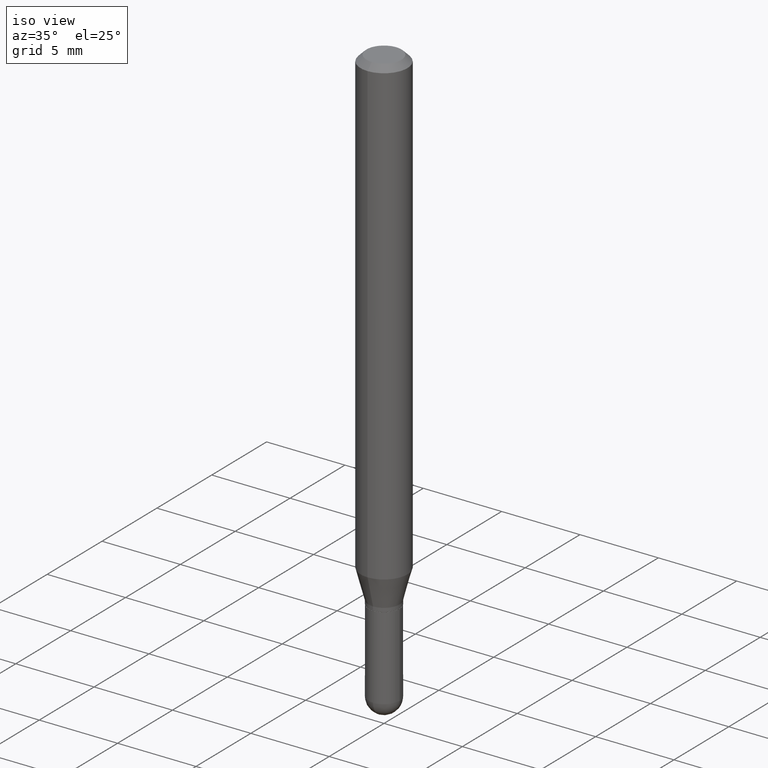
[diagram: clean part render]
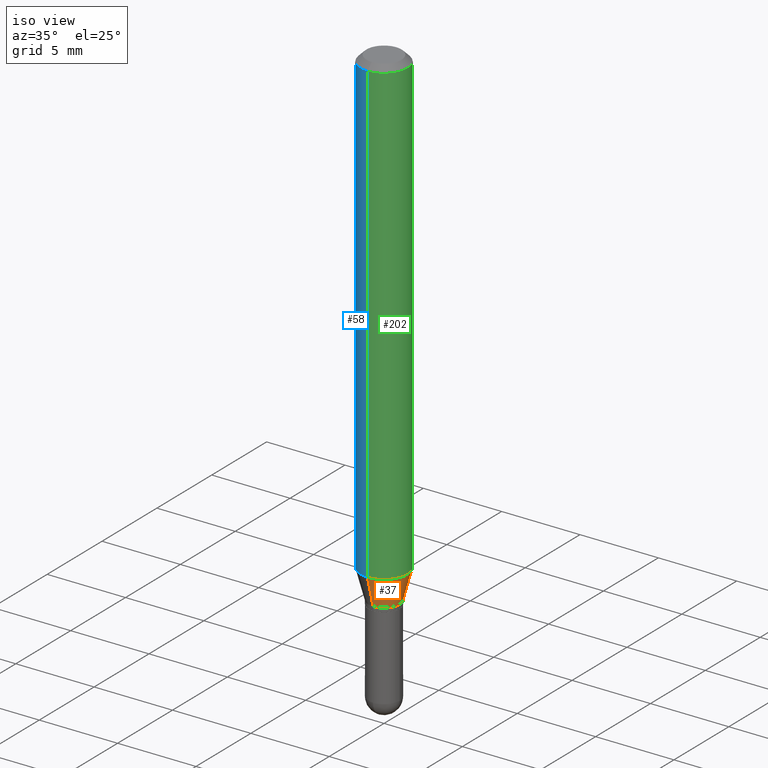
[diagram: same view with three faces highlighted in distinct colors, each labeled with its STEP entity id]
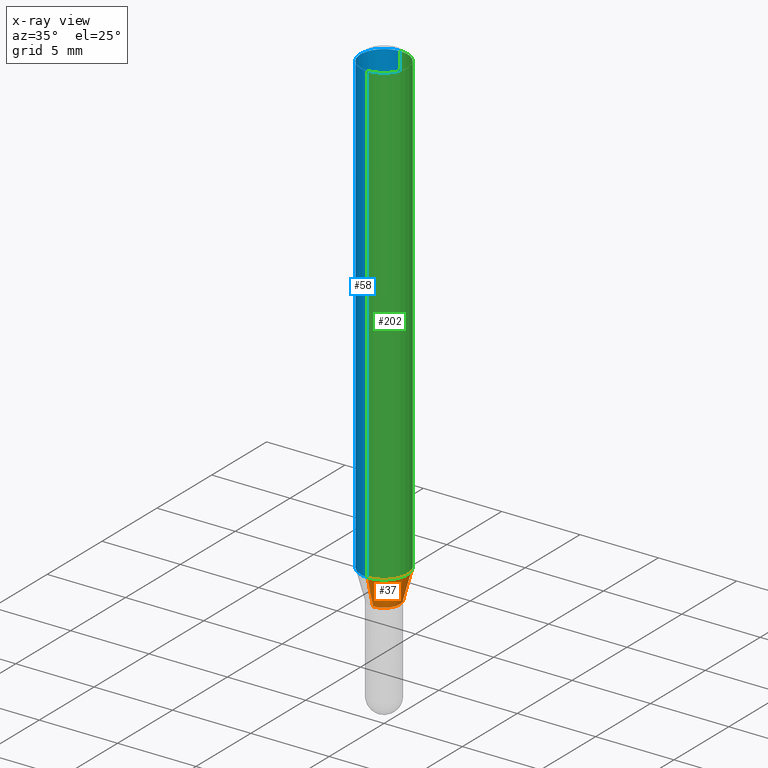
[diagram: x-ray of the same camera — body ghosted, the three highlighted faces saturated]
A machine part, iso view with three faces highlighted in distinct colors.
The next image is the same camera in x-ray (body ghosted, the three faces saturated) — at least one of them is partly hidden behind the body in this view.
Their STEP definitions:

[orange] entity #37 — the highlighted conical surface has half-angle 15 deg.
#20 = ORIENTED_EDGE ( 'NONE', *, *, #29, .F. ) ;
#29 = EDGE_CURVE ( 'NONE', #430, #311, #178, .T. ) ;
#37 = ADVANCED_FACE ( 'NONE', ( #319 ), #457, .T. ) ;
#43 = DIRECTION ( 'NONE',  ( -6.982962677686265133E-15, -1.000000000000000000, 6.942434545525459712E-15 ) ) ;
#44 = CARTESIAN_POINT ( 'NONE',  ( -2.747795813669238062E-16, -0.03935000000000424270, -1.238099999999999534 ) ) ;
#57 = CARTESIAN_POINT ( 'NONE',  ( -4.123439461173452886E-16, -0.05905000000000402982, -1.164578599090892785 ) ) ;
#59 = CARTESIAN_POINT ( 'NONE',  ( 4.195754854663677934E-16, 0.05904999999999596683, -1.164578599090893229 ) ) ;
#68 = LINE ( 'NONE', #232, #431 ) ;
#72 = DIRECTION ( 'NONE',  ( -2.445991447333329279E-29, 3.490732886972046653E-15, 1.000000000000000000 ) ) ;
#98 = LINE ( 'NONE', #263, #114 ) ;
#101 = EDGE_CURVE ( 'NONE', #102, #470, #421, .T. ) ;
#102 = VERTEX_POINT ( 'NONE', #44 ) ;
#109 = CARTESIAN_POINT ( 'NONE',  ( 2.848549293123754219E-29, -4.065232815310413885E-15, -1.164578599090893007 ) ) ;
#114 = VECTOR ( 'NONE', #224, 39.37007874015748143 ) ;
#144 = DIRECTION ( 'NONE',  ( -2.445991447333329279E-29, 3.490732886972046653E-15, 1.000000000000000000 ) ) ;
#164 = DIRECTION ( 'NONE',  ( -1.807323732225330928E-15, -0.2588190451025182970, 0.9659258262890689783 ) ) ;
#178 = CIRCLE ( 'NONE', #380, 0.05904999999999999832 ) ;
#224 = DIRECTION ( 'NONE',  ( 1.839019923739601104E-15, 0.2588190451025250693, 0.9659258262890670910 ) ) ;
#232 = CARTESIAN_POINT ( 'NONE',  ( -2.747795813669238062E-16, -0.03935000000000424270, -1.238099999999999534 ) ) ;
#236 = DIRECTION ( 'NONE',  ( -6.982962677686265133E-15, -1.000000000000000000, 6.942434545525459712E-15 ) ) ;
#263 = CARTESIAN_POINT ( 'NONE',  ( 2.795985665216290763E-16, 0.03934999999999560377, -1.238100000000000200 ) ) ;
#276 = CARTESIAN_POINT ( 'NONE',  ( 3.028382010943394817E-29, -4.321876387360090974E-15, -1.238099999999999756 ) ) ;
#284 = ORIENTED_EDGE ( 'NONE', *, *, #101, .T. ) ;
#306 = CARTESIAN_POINT ( 'NONE',  ( 3.495870259939983362E-16, 0.03934999999999560377, -1.238100000000000200 ) ) ;
#311 = VERTEX_POINT ( 'NONE', #59 ) ;
#312 = AXIS2_PLACEMENT_3D ( 'NONE', #276, #72, #236 ) ;
#319 = FACE_OUTER_BOUND ( 'NONE', #498, .T. ) ;
#352 = ORIENTED_EDGE ( 'NONE', *, *, #489, .T. ) ;
#363 = ORIENTED_EDGE ( 'NONE', *, *, #415, .F. ) ;
#369 = CARTESIAN_POINT ( 'NONE',  ( 3.028382010943394817E-29, -4.321876387360090974E-15, -1.238099999999999756 ) ) ;
#380 = AXIS2_PLACEMENT_3D ( 'NONE', #109, #144, #388 ) ;
#388 = DIRECTION ( 'NONE',  ( -6.982962677686265922E-15, -1.000000000000000000, 4.626330217890369336E-15 ) ) ;
#415 = EDGE_CURVE ( 'NONE', #102, #430, #68, .T. ) ;
#421 = CIRCLE ( 'NONE', #493, 0.03934999999999992670 ) ;
#430 = VERTEX_POINT ( 'NONE', #57 ) ;
#431 = VECTOR ( 'NONE', #164, 39.37007874015748143 ) ;
#446 = DIRECTION ( 'NONE',  ( -2.445991447333329279E-29, 3.490732886972046653E-15, 1.000000000000000000 ) ) ;
#457 = CONICAL_SURFACE ( 'NONE', #312, 0.03934999999999992670, 0.2617993877991502960 ) ;
#470 = VERTEX_POINT ( 'NONE', #306 ) ;
#489 = EDGE_CURVE ( 'NONE', #470, #311, #98, .T. ) ;
#493 = AXIS2_PLACEMENT_3D ( 'NONE', #369, #446, #43 ) ;
#498 = EDGE_LOOP ( 'NONE', ( #284, #352, #20, #363 ) ) ;

[blue] entity #58 — the highlighted cylindrical surface (edge-blend (fillet) strip) has radius 1.4999 mm, axis along (-0, 0, 1).
#13 = CARTESIAN_POINT ( 'NONE',  ( 0.000000000000000000, 0.000000000000000000, 0.000000000000000000 ) ) ;
#19 = CARTESIAN_POINT ( 'NONE',  ( -4.123439461173737369E-16, -0.05905000000000006771, -0.01500000000000025618 ) ) ;
#30 = CARTESIAN_POINT ( 'NONE',  ( 4.195754854663679906E-16, 0.05904999999999997057, -0.01500000000000067078 ) ) ;
#33 = VERTEX_POINT ( 'NONE', #30 ) ;
#42 = ORIENTED_EDGE ( 'NONE', *, *, #365, .T. ) ;
#50 = CYLINDRICAL_SURFACE ( 'NONE', #73, 0.05905000000000000526 ) ;
#57 = CARTESIAN_POINT ( 'NONE',  ( -4.123439461173452886E-16, -0.05905000000000402982, -1.164578599090892785 ) ) ;
#58 = ADVANCED_FACE ( 'NONE', ( #123 ), #50, .T. ) ;
#59 = CARTESIAN_POINT ( 'NONE',  ( 4.195754854663677934E-16, 0.05904999999999596683, -1.164578599090893229 ) ) ;
#73 = AXIS2_PLACEMENT_3D ( 'NONE', #13, #89, #300 ) ;
#76 = ORIENTED_EDGE ( 'NONE', *, *, #332, .F. ) ;
#80 = CIRCLE ( 'NONE', #289, 0.05904999999999999832 ) ;
#83 = CARTESIAN_POINT ( 'NONE',  ( -4.123439461173740327E-16, -0.05905000000000000526, 2.061277769756993909E-16 ) ) ;
#89 = DIRECTION ( 'NONE',  ( -2.445991447333329279E-29, 3.490732886972046653E-15, 1.000000000000000000 ) ) ;
#123 = FACE_OUTER_BOUND ( 'NONE', #464, .T. ) ;
#142 = VECTOR ( 'NONE', #375, 39.37007874015748143 ) ;
#151 = DIRECTION ( 'NONE',  ( -2.445991447333329279E-29, 3.490732886972046653E-15, 1.000000000000000000 ) ) ;
#188 = AXIS2_PLACEMENT_3D ( 'NONE', #201, #361, #463 ) ;
#198 = CIRCLE ( 'NONE', #188, 0.05905000000000001914 ) ;
#201 = CARTESIAN_POINT ( 'NONE',  ( 3.668987171000107582E-31, -5.236099330458231942E-17, -0.01500000000000046262 ) ) ;
#219 = EDGE_CURVE ( 'NONE', #430, #231, #441, .T. ) ;
#231 = VERTEX_POINT ( 'NONE', #19 ) ;
#248 = DIRECTION ( 'NONE',  ( -2.445991447333329279E-29, 3.490732886972046653E-15, 1.000000000000000000 ) ) ;
#274 = ORIENTED_EDGE ( 'NONE', *, *, #440, .F. ) ;
#289 = AXIS2_PLACEMENT_3D ( 'NONE', #389, #151, #508 ) ;
#300 = DIRECTION ( 'NONE',  ( -6.982962677686265922E-15, -1.000000000000000000, 3.490732886972047047E-15 ) ) ;
#308 = LINE ( 'NONE', #499, #142 ) ;
#311 = VERTEX_POINT ( 'NONE', #59 ) ;
#332 = EDGE_CURVE ( 'NONE', #33, #231, #198, .T. ) ;
#361 = DIRECTION ( 'NONE',  ( -2.445991447333329279E-29, 3.490732886972046653E-15, 1.000000000000000000 ) ) ;
#365 = EDGE_CURVE ( 'NONE', #311, #430, #80, .T. ) ;
#375 = DIRECTION ( 'NONE',  ( -2.445991447333329279E-29, 3.490732886972046653E-15, 1.000000000000000000 ) ) ;
#389 = CARTESIAN_POINT ( 'NONE',  ( 2.848549293123754219E-29, -4.065232815310413885E-15, -1.164578599090893007 ) ) ;
#430 = VERTEX_POINT ( 'NONE', #57 ) ;
#440 = EDGE_CURVE ( 'NONE', #311, #33, #308, .T. ) ;
#441 = LINE ( 'NONE', #83, #458 ) ;
#451 = ORIENTED_EDGE ( 'NONE', *, *, #219, .T. ) ;
#458 = VECTOR ( 'NONE', #248, 39.37007874015748143 ) ;
#463 = DIRECTION ( 'NONE',  ( -6.982962677686265922E-15, -1.000000000000000000, 3.505890868245044514E-15 ) ) ;
#464 = EDGE_LOOP ( 'NONE', ( #274, #42, #451, #76 ) ) ;
#499 = CARTESIAN_POINT ( 'NONE',  ( 4.195754854663391478E-16, 0.05905000000000000526, -2.061277769756993909E-16 ) ) ;
#508 = DIRECTION ( 'NONE',  ( -6.982962677686265922E-15, -1.000000000000000000, 4.626330217890369336E-15 ) ) ;

[green] entity #202 — the highlighted cylindrical surface (edge-blend (fillet) strip) has radius 1.4999 mm, axis along (-0, 0, 1).
#7 = AXIS2_PLACEMENT_3D ( 'NONE', #338, #336, #341 ) ;
#19 = CARTESIAN_POINT ( 'NONE',  ( -4.123439461173737369E-16, -0.05905000000000006771, -0.01500000000000025618 ) ) ;
#29 = EDGE_CURVE ( 'NONE', #430, #311, #178, .T. ) ;
#30 = CARTESIAN_POINT ( 'NONE',  ( 4.195754854663679906E-16, 0.05904999999999997057, -0.01500000000000067078 ) ) ;
#33 = VERTEX_POINT ( 'NONE', #30 ) ;
#57 = CARTESIAN_POINT ( 'NONE',  ( -4.123439461173452886E-16, -0.05905000000000402982, -1.164578599090892785 ) ) ;
#59 = CARTESIAN_POINT ( 'NONE',  ( 4.195754854663677934E-16, 0.05904999999999596683, -1.164578599090893229 ) ) ;
#83 = CARTESIAN_POINT ( 'NONE',  ( -4.123439461173740327E-16, -0.05905000000000000526, 2.061277769756993909E-16 ) ) ;
#109 = CARTESIAN_POINT ( 'NONE',  ( 2.848549293123754219E-29, -4.065232815310413885E-15, -1.164578599090893007 ) ) ;
#117 = ORIENTED_EDGE ( 'NONE', *, *, #156, .F. ) ;
#126 = CYLINDRICAL_SURFACE ( 'NONE', #140, 0.05905000000000000526 ) ;
#139 = ORIENTED_EDGE ( 'NONE', *, *, #29, .T. ) ;
#140 = AXIS2_PLACEMENT_3D ( 'NONE', #296, #483, #291 ) ;
#142 = VECTOR ( 'NONE', #375, 39.37007874015748143 ) ;
#144 = DIRECTION ( 'NONE',  ( -2.445991447333329279E-29, 3.490732886972046653E-15, 1.000000000000000000 ) ) ;
#156 = EDGE_CURVE ( 'NONE', #231, #33, #168, .T. ) ;
#168 = CIRCLE ( 'NONE', #7, 0.05905000000000001914 ) ;
#178 = CIRCLE ( 'NONE', #380, 0.05904999999999999832 ) ;
#184 = ORIENTED_EDGE ( 'NONE', *, *, #219, .F. ) ;
#202 = ADVANCED_FACE ( 'NONE', ( #333 ), #126, .T. ) ;
#219 = EDGE_CURVE ( 'NONE', #430, #231, #441, .T. ) ;
#231 = VERTEX_POINT ( 'NONE', #19 ) ;
#248 = DIRECTION ( 'NONE',  ( -2.445991447333329279E-29, 3.490732886972046653E-15, 1.000000000000000000 ) ) ;
#291 = DIRECTION ( 'NONE',  ( -6.982962677686265922E-15, -1.000000000000000000, 3.490732886972047047E-15 ) ) ;
#296 = CARTESIAN_POINT ( 'NONE',  ( 0.000000000000000000, 0.000000000000000000, 0.000000000000000000 ) ) ;
#308 = LINE ( 'NONE', #499, #142 ) ;
#311 = VERTEX_POINT ( 'NONE', #59 ) ;
#322 = ORIENTED_EDGE ( 'NONE', *, *, #440, .T. ) ;
#333 = FACE_OUTER_BOUND ( 'NONE', #433, .T. ) ;
#336 = DIRECTION ( 'NONE',  ( -2.445991447333329279E-29, 3.490732886972046653E-15, 1.000000000000000000 ) ) ;
#338 = CARTESIAN_POINT ( 'NONE',  ( 3.668987171000107582E-31, -5.236099330458231942E-17, -0.01500000000000046262 ) ) ;
#341 = DIRECTION ( 'NONE',  ( -6.982962677686265922E-15, -1.000000000000000000, 3.505890868245044514E-15 ) ) ;
#375 = DIRECTION ( 'NONE',  ( -2.445991447333329279E-29, 3.490732886972046653E-15, 1.000000000000000000 ) ) ;
#380 = AXIS2_PLACEMENT_3D ( 'NONE', #109, #144, #388 ) ;
#388 = DIRECTION ( 'NONE',  ( -6.982962677686265922E-15, -1.000000000000000000, 4.626330217890369336E-15 ) ) ;
#430 = VERTEX_POINT ( 'NONE', #57 ) ;
#433 = EDGE_LOOP ( 'NONE', ( #139, #322, #117, #184 ) ) ;
#440 = EDGE_CURVE ( 'NONE', #311, #33, #308, .T. ) ;
#441 = LINE ( 'NONE', #83, #458 ) ;
#458 = VECTOR ( 'NONE', #248, 39.37007874015748143 ) ;
#483 = DIRECTION ( 'NONE',  ( -2.445991447333329279E-29, 3.490732886972046653E-15, 1.000000000000000000 ) ) ;
#499 = CARTESIAN_POINT ( 'NONE',  ( 4.195754854663391478E-16, 0.05905000000000000526, -2.061277769756993909E-16 ) ) ;